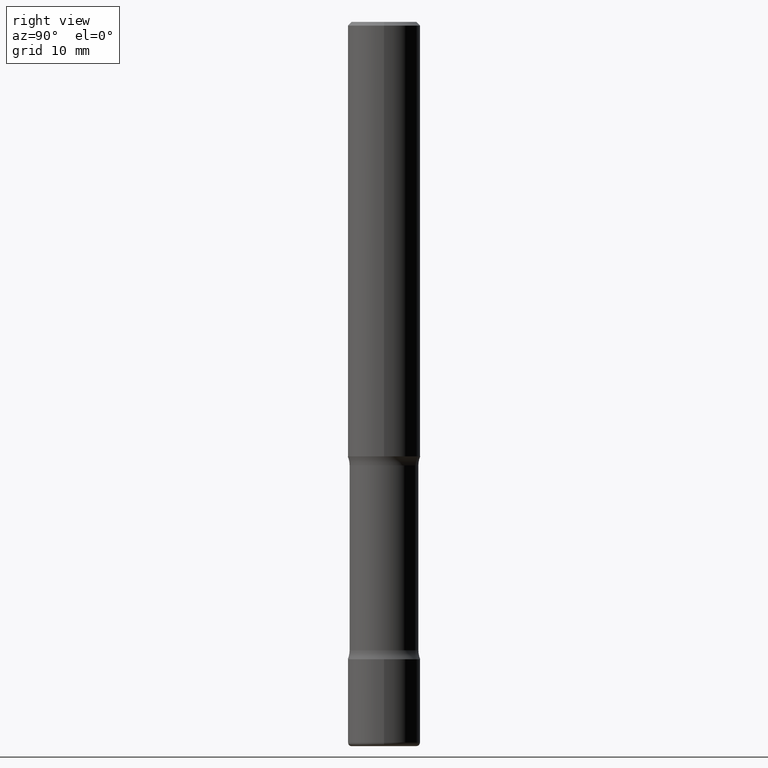
[diagram: clean part render]
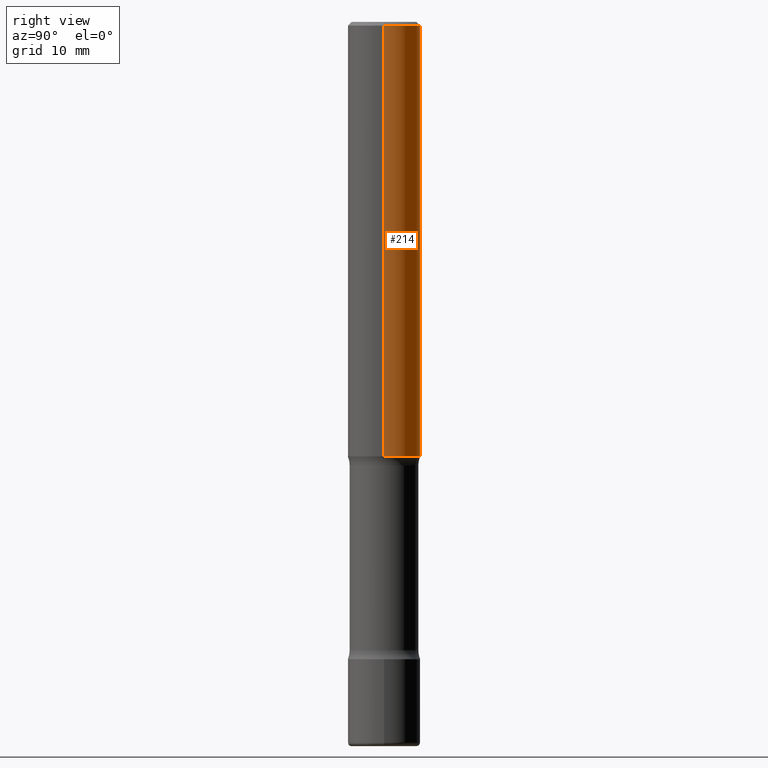
[diagram: same view with one face highlighted and labeled with its STEP entity id]
A machine part, right view. The second image highlights one B-rep face of the part: STEP entity #214.
In plain terms, the highlighted cylindrical surface (edge-blend (fillet) strip) has radius 5 mm, axis along (-0, 0, 1).
Its self-contained STEP definition (entity closure, byte-faithful):
#3 = DIRECTION ( 'NONE',  ( -2.445468806185136597E-29, 3.491481338843145583E-15, 1.000000000000000000 ) ) ;
#10 = EDGE_CURVE ( 'NONE', #535, #131, #158, .T. ) ;
#11 = CARTESIAN_POINT ( 'NONE',  ( 5.776686413970530874E-29, -8.247577218615281204E-15, -2.362200000000000966 ) ) ;
#16 = ORIENTED_EDGE ( 'NONE', *, *, #10, .F. ) ;
#57 = LINE ( 'NONE', #59, #254 ) ;
#59 = CARTESIAN_POINT ( 'NONE',  ( -0.1968500000000000250, 1.398703375343757393E-15, -9.682923725166783677E-30 ) ) ;
#66 = DIRECTION ( 'NONE',  ( -2.445468806185136877E-29, 3.491481338843145188E-15, 1.000000000000000000 ) ) ;
#68 = DIRECTION ( 'NONE',  ( -2.445468806185136597E-29, 3.491481338843145583E-15, 1.000000000000000000 ) ) ;
#92 = VERTEX_POINT ( 'NONE', #551 ) ;
#108 = CARTESIAN_POINT ( 'NONE',  ( 0.1968500000000000250, -1.374596203102541608E-15, 9.598753983154300858E-30 ) ) ;
#131 = VERTEX_POINT ( 'NONE', #466 ) ;
#158 = CIRCLE ( 'NONE', #309, 0.1968499999999999139 ) ;
#193 = DIRECTION ( 'NONE',  ( 1.000000000000000000, -6.982962677686266711E-15, 0.000000000000000000 ) ) ;
#214 = ADVANCED_FACE ( 'NONE', ( #463 ), #250, .T. ) ;
#250 = CYLINDRICAL_SURFACE ( 'NONE', #332, 0.1968500000000000250 ) ;
#254 = VECTOR ( 'NONE', #66, 39.37007874015748143 ) ;
#275 = CARTESIAN_POINT ( 'NONE',  ( 4.890937612370289799E-31, -6.982962677686315028E-17, -0.02000000000000006981 ) ) ;
#304 = ORIENTED_EDGE ( 'NONE', *, *, #464, .T. ) ;
#309 = AXIS2_PLACEMENT_3D ( 'NONE', #275, #68, #193 ) ;
#332 = AXIS2_PLACEMENT_3D ( 'NONE', #418, #3, #398 ) ;
#357 = CIRCLE ( 'NONE', #441, 0.1968500000000001082 ) ;
#359 = EDGE_LOOP ( 'NONE', ( #493, #304, #16, #519 ) ) ;
#367 = EDGE_CURVE ( 'NONE', #92, #535, #473, .T. ) ;
#392 = EDGE_CURVE ( 'NONE', #92, #496, #357, .T. ) ;
#398 = DIRECTION ( 'NONE',  ( 1.000000000000000000, -6.982962677686265922E-15, 4.876176775795935793E-29 ) ) ;
#403 = CARTESIAN_POINT ( 'NONE',  ( -0.1968500000000001082, -2.760000047352312097E-15, -2.362200000000000966 ) ) ;
#411 = DIRECTION ( 'NONE',  ( 1.000000000000000000, -6.982962677686269866E-15, 0.000000000000000000 ) ) ;
#418 = CARTESIAN_POINT ( 'NONE',  ( 0.000000000000000000, 0.000000000000000000, 0.000000000000000000 ) ) ;
#441 = AXIS2_PLACEMENT_3D ( 'NONE', #11, #489, #411 ) ;
#463 = FACE_OUTER_BOUND ( 'NONE', #359, .T. ) ;
#464 = EDGE_CURVE ( 'NONE', #496, #131, #57, .T. ) ;
#465 = CARTESIAN_POINT ( 'NONE',  ( 0.1968499999999999139, -1.420318657638188530E-15, -0.02000000000000006981 ) ) ;
#466 = CARTESIAN_POINT ( 'NONE',  ( -0.1968499999999999139, 1.304766576325677916E-15, -0.02000000000000006981 ) ) ;
#473 = LINE ( 'NONE', #108, #549 ) ;
#489 = DIRECTION ( 'NONE',  ( -2.445468806185136597E-29, 3.491481338843145583E-15, 1.000000000000000000 ) ) ;
#493 = ORIENTED_EDGE ( 'NONE', *, *, #392, .T. ) ;
#496 = VERTEX_POINT ( 'NONE', #403 ) ;
#519 = ORIENTED_EDGE ( 'NONE', *, *, #367, .F. ) ;
#535 = VERTEX_POINT ( 'NONE', #465 ) ;
#538 = DIRECTION ( 'NONE',  ( -2.445468806185136877E-29, 3.491481338843145188E-15, 1.000000000000000000 ) ) ;
#549 = VECTOR ( 'NONE', #538, 39.37007874015748143 ) ;
#551 = CARTESIAN_POINT ( 'NONE',  ( 0.1968500000000001082, -9.622173421717824390E-15, -2.362200000000000966 ) ) ;